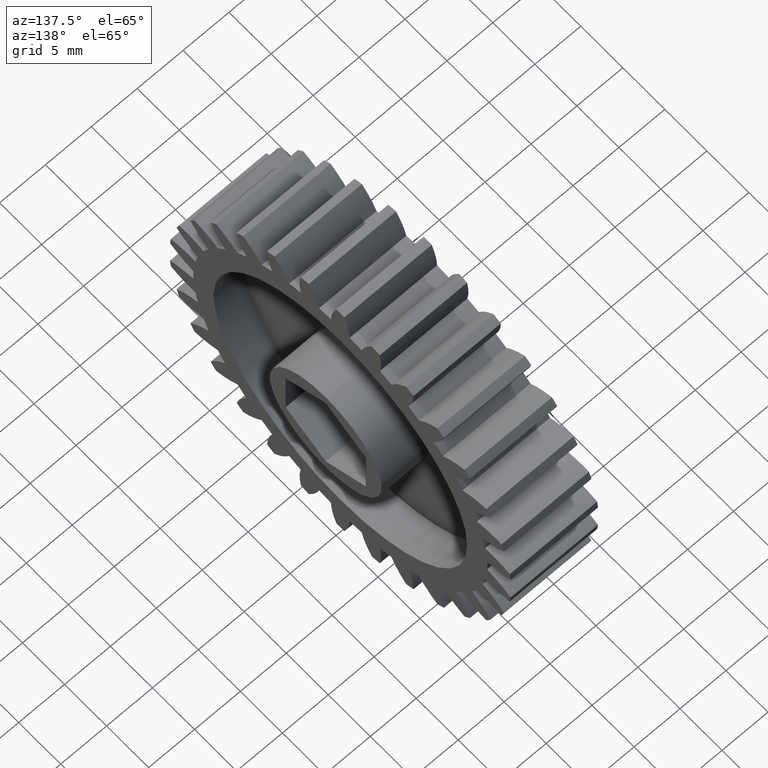
[diagram: clean part render]
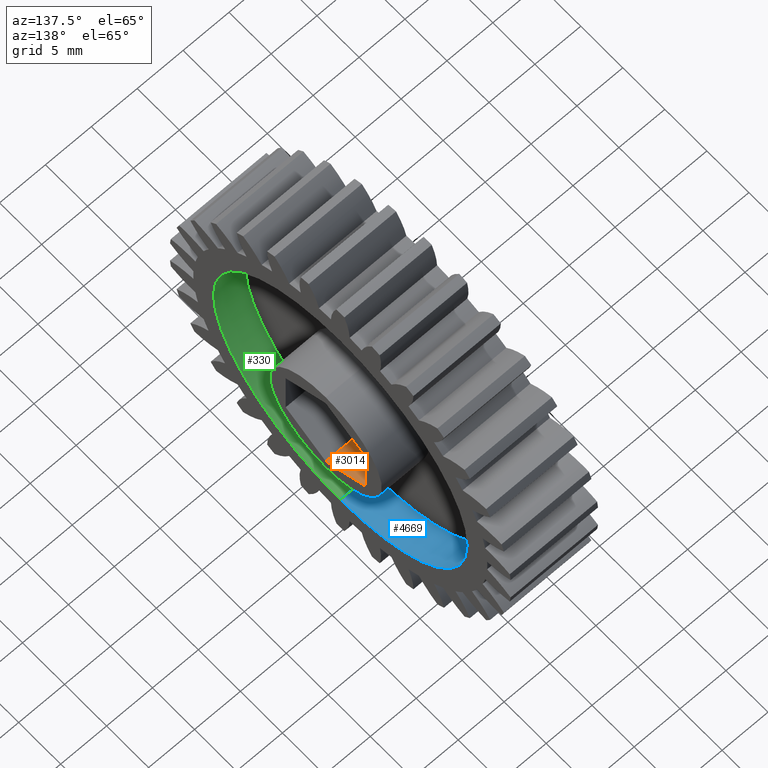
[diagram: same view with three faces highlighted in distinct colors, each labeled with its STEP entity id]
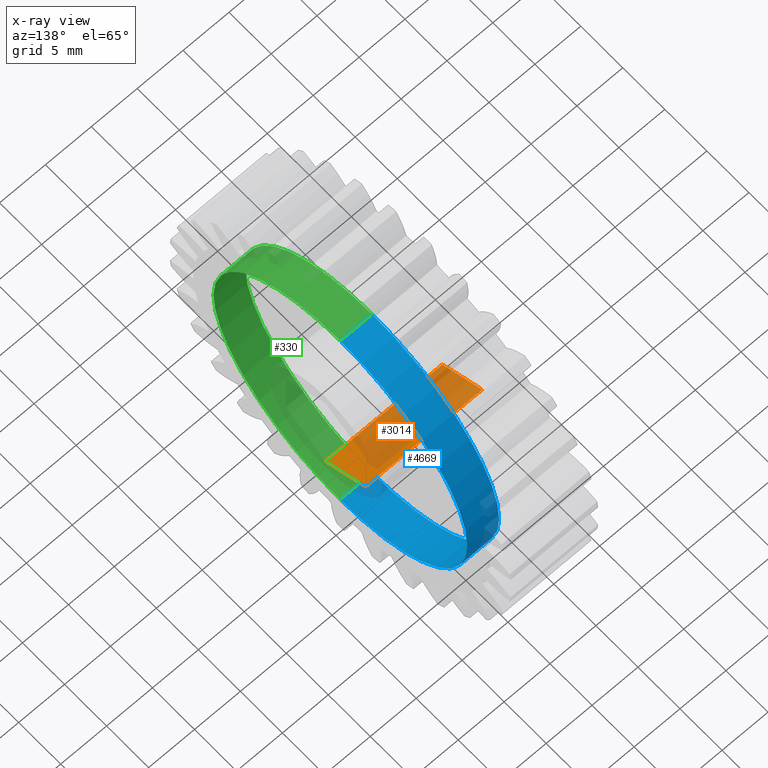
[diagram: x-ray of the same camera — body ghosted, the three highlighted faces saturated]
A machine part, auxiliary view with three faces highlighted in distinct colors.
The next image is the same camera in x-ray (body ghosted, the three faces saturated) — at least one of them is partly hidden behind the body in this view.
Their STEP definitions:

[orange] entity #3014 — the highlighted planar face has unit normal (0, 0.5, -0.866).
#29 = VECTOR ( 'NONE', #3936, 39.37007874015749600 ) ;
#79 = EDGE_LOOP ( 'NONE', ( #2999, #3098, #3125, #3221 ) ) ;
#97 = LINE ( 'NONE', #179, #29 ) ;
#128 = EDGE_CURVE ( 'NONE', #2533, #1705, #1711, .T. ) ;
#151 = FACE_OUTER_BOUND ( 'NONE', #79, .T. ) ;
#166 = CARTESIAN_POINT ( 'NONE',  ( -0.06250000000000001400, 3.632610216871045100E-017, -0.2165063509461097000 ) ) ;
#179 = CARTESIAN_POINT ( 'NONE',  ( 0.4375000000000000600, 3.632610216871045100E-017, -0.2165063509461097000 ) ) ;
#373 = EDGE_CURVE ( 'NONE', #917, #4404, #1312, .T. ) ;
#917 = VERTEX_POINT ( 'NONE', #3881 ) ;
#1144 = VECTOR ( 'NONE', #2646, 39.37007874015748100 ) ;
#1312 = LINE ( 'NONE', #2597, #1144 ) ;
#1583 = VECTOR ( 'NONE', #1822, 39.37007874015748100 ) ;
#1705 = VERTEX_POINT ( 'NONE', #2098 ) ;
#1711 = LINE ( 'NONE', #2261, #1583 ) ;
#1716 = CARTESIAN_POINT ( 'NONE',  ( -0.06250000000000001400, 3.632610216871045100E-017, -0.2165063509461097000 ) ) ;
#1799 = EDGE_CURVE ( 'NONE', #1705, #4404, #97, .T. ) ;
#1822 = DIRECTION ( 'NONE',  ( 1.000000000000000000, -0.0000000000000000000, -0.0000000000000000000 ) ) ;
#1914 = EDGE_CURVE ( 'NONE', #2533, #917, #4595, .T. ) ;
#2098 = CARTESIAN_POINT ( 'NONE',  ( 0.4375000000000000600, 3.414809992080329000E-017, -0.2165063509461097000 ) ) ;
#2261 = CARTESIAN_POINT ( 'NONE',  ( -0.06250000000000001400, 3.632610216871045100E-017, -0.2165063509461097000 ) ) ;
#2441 = PLANE ( 'NONE',  #3295 ) ;
#2533 = VERTEX_POINT ( 'NONE', #166 ) ;
#2597 = CARTESIAN_POINT ( 'NONE',  ( -0.06250000000000001400, 0.1875000000000000300, -0.1082531754730548200 ) ) ;
#2646 = DIRECTION ( 'NONE',  ( 1.000000000000000000, -0.0000000000000000000, -0.0000000000000000000 ) ) ;
#2999 = ORIENTED_EDGE ( 'NONE', *, *, #1799, .T. ) ;
#3014 = ADVANCED_FACE ( 'NONE', ( #151 ), #2441, .F. ) ;
#3098 = ORIENTED_EDGE ( 'NONE', *, *, #373, .F. ) ;
#3125 = ORIENTED_EDGE ( 'NONE', *, *, #1914, .F. ) ;
#3221 = ORIENTED_EDGE ( 'NONE', *, *, #128, .T. ) ;
#3295 = AXIS2_PLACEMENT_3D ( 'NONE', #1716, #3694, #3659 ) ;
#3659 = DIRECTION ( 'NONE',  ( 0.0000000000000000000, 0.8660254037844384900, 0.5000000000000002200 ) ) ;
#3694 = DIRECTION ( 'NONE',  ( 0.0000000000000000000, 0.5000000000000003300, -0.8660254037844386000 ) ) ;
#3881 = CARTESIAN_POINT ( 'NONE',  ( -0.06250000000000000000, 0.1874999999999999700, -0.1082531754730548200 ) ) ;
#3936 = DIRECTION ( 'NONE',  ( 0.0000000000000000000, 0.8660254037844384900, 0.5000000000000002200 ) ) ;
#4154 = DIRECTION ( 'NONE',  ( 0.0000000000000000000, 0.8660254037844384900, 0.5000000000000002200 ) ) ;
#4169 = CARTESIAN_POINT ( 'NONE',  ( 0.4375000000000000600, 0.1875000000000000300, -0.1082531754730548200 ) ) ;
#4179 = CARTESIAN_POINT ( 'NONE',  ( -0.06250000000000001400, 3.632610216871045100E-017, -0.2165063509461097000 ) ) ;
#4404 = VERTEX_POINT ( 'NONE', #4169 ) ;
#4419 = VECTOR ( 'NONE', #4154, 39.37007874015749600 ) ;
#4595 = LINE ( 'NONE', #4179, #4419 ) ;

[blue] entity #4669 — the highlighted cylindrical surface (partial cylindrical patch) has radius 15.0812 mm, axis along (1, -0, -0).
#421 = CARTESIAN_POINT ( 'NONE',  ( 0.3750000000000000600, 0.0000000000000000000, -0.5937500000000000000 ) ) ;
#435 = EDGE_CURVE ( 'NONE', #4170, #2448, #1023, .T. ) ;
#471 = FACE_OUTER_BOUND ( 'NONE', #3491, .T. ) ;
#503 = AXIS2_PLACEMENT_3D ( 'NONE', #4698, #4717, #4651 ) ;
#591 = CARTESIAN_POINT ( 'NONE',  ( 0.2374999999999999900, 7.271340369937410500E-017, 0.5937500000000000000 ) ) ;
#966 = VERTEX_POINT ( 'NONE', #3402 ) ;
#1016 = EDGE_CURVE ( 'NONE', #2473, #966, #4242, .T. ) ;
#1023 = CIRCLE ( 'NONE', #503, 0.5937500000000000000 ) ;
#1166 = CYLINDRICAL_SURFACE ( 'NONE', #1548, 0.5937500000000000000 ) ;
#1548 = AXIS2_PLACEMENT_3D ( 'NONE', #3811, #3817, #4392 ) ;
#1839 = EDGE_CURVE ( 'NONE', #2448, #966, #4873, .T. ) ;
#1890 = EDGE_CURVE ( 'NONE', #4170, #2473, #4549, .T. ) ;
#2448 = VERTEX_POINT ( 'NONE', #591 ) ;
#2473 = VERTEX_POINT ( 'NONE', #421 ) ;
#3045 = DIRECTION ( 'NONE',  ( 0.0000000000000000000, 0.0000000000000000000, -1.000000000000000000 ) ) ;
#3048 = DIRECTION ( 'NONE',  ( 1.000000000000000000, 0.0000000000000000000, 0.0000000000000000000 ) ) ;
#3060 = CARTESIAN_POINT ( 'NONE',  ( 0.3750000000000000600, 0.0000000000000000000, 0.0000000000000000000 ) ) ;
#3225 = ORIENTED_EDGE ( 'NONE', *, *, #1839, .F. ) ;
#3286 = ORIENTED_EDGE ( 'NONE', *, *, #435, .F. ) ;
#3347 = ORIENTED_EDGE ( 'NONE', *, *, #1890, .T. ) ;
#3402 = CARTESIAN_POINT ( 'NONE',  ( 0.3750000000000000600, 7.271340369937410500E-017, 0.5937500000000000000 ) ) ;
#3423 = ORIENTED_EDGE ( 'NONE', *, *, #1016, .T. ) ;
#3491 = EDGE_LOOP ( 'NONE', ( #3225, #3286, #3347, #3423 ) ) ;
#3811 = CARTESIAN_POINT ( 'NONE',  ( 0.2374999999999999900, 0.0000000000000000000, 0.0000000000000000000 ) ) ;
#3817 = DIRECTION ( 'NONE',  ( 1.000000000000000000, -0.0000000000000000000, -0.0000000000000000000 ) ) ;
#4170 = VERTEX_POINT ( 'NONE', #4665 ) ;
#4242 = CIRCLE ( 'NONE', #4870, 0.5937500000000000000 ) ;
#4325 = DIRECTION ( 'NONE',  ( 1.000000000000000000, -0.0000000000000000000, -0.0000000000000000000 ) ) ;
#4389 = CARTESIAN_POINT ( 'NONE',  ( 0.2374999999999999900, 0.0000000000000000000, -0.5937500000000000000 ) ) ;
#4392 = DIRECTION ( 'NONE',  ( 0.0000000000000000000, 0.0000000000000000000, -1.000000000000000000 ) ) ;
#4493 = VECTOR ( 'NONE', #4325, 39.37007874015748100 ) ;
#4549 = LINE ( 'NONE', #4389, #4493 ) ;
#4651 = DIRECTION ( 'NONE',  ( 0.0000000000000000000, 0.0000000000000000000, -1.000000000000000000 ) ) ;
#4665 = CARTESIAN_POINT ( 'NONE',  ( 0.2374999999999999900, 0.0000000000000000000, -0.5937500000000000000 ) ) ;
#4669 = ADVANCED_FACE ( 'NONE', ( #471 ), #1166, .F. ) ;
#4698 = CARTESIAN_POINT ( 'NONE',  ( 0.2374999999999999900, 0.0000000000000000000, 0.0000000000000000000 ) ) ;
#4717 = DIRECTION ( 'NONE',  ( 1.000000000000000000, 0.0000000000000000000, 0.0000000000000000000 ) ) ;
#4725 = DIRECTION ( 'NONE',  ( 1.000000000000000000, -0.0000000000000000000, -0.0000000000000000000 ) ) ;
#4729 = CARTESIAN_POINT ( 'NONE',  ( 0.2374999999999999900, 7.271340369937410500E-017, 0.5937500000000000000 ) ) ;
#4867 = VECTOR ( 'NONE', #4725, 39.37007874015748100 ) ;
#4870 = AXIS2_PLACEMENT_3D ( 'NONE', #3060, #3048, #3045 ) ;
#4873 = LINE ( 'NONE', #4729, #4867 ) ;

[green] entity #330 — the highlighted cylindrical surface (partial cylindrical patch) has radius 15.0812 mm, axis along (1, -0, -0).
#3 = DIRECTION ( 'NONE',  ( 0.0000000000000000000, 0.0000000000000000000, -1.000000000000000000 ) ) ;
#40 = DIRECTION ( 'NONE',  ( 1.000000000000000000, 0.0000000000000000000, 0.0000000000000000000 ) ) ;
#330 = ADVANCED_FACE ( 'NONE', ( #1450 ), #1194, .F. ) ;
#410 = AXIS2_PLACEMENT_3D ( 'NONE', #2900, #2956, #2948 ) ;
#421 = CARTESIAN_POINT ( 'NONE',  ( 0.3750000000000000600, 0.0000000000000000000, -0.5937500000000000000 ) ) ;
#591 = CARTESIAN_POINT ( 'NONE',  ( 0.2374999999999999900, 7.271340369937410500E-017, 0.5937500000000000000 ) ) ;
#966 = VERTEX_POINT ( 'NONE', #3402 ) ;
#1194 = CYLINDRICAL_SURFACE ( 'NONE', #410, 0.5937500000000000000 ) ;
#1450 = FACE_OUTER_BOUND ( 'NONE', #1880, .T. ) ;
#1815 = EDGE_CURVE ( 'NONE', #2448, #4170, #2394, .T. ) ;
#1839 = EDGE_CURVE ( 'NONE', #2448, #966, #4873, .T. ) ;
#1842 = ORIENTED_EDGE ( 'NONE', *, *, #1890, .F. ) ;
#1859 = EDGE_CURVE ( 'NONE', #966, #2473, #4752, .T. ) ;
#1880 = EDGE_LOOP ( 'NONE', ( #2363, #2307, #4211, #1842 ) ) ;
#1890 = EDGE_CURVE ( 'NONE', #4170, #2473, #4549, .T. ) ;
#2307 = ORIENTED_EDGE ( 'NONE', *, *, #1839, .T. ) ;
#2363 = ORIENTED_EDGE ( 'NONE', *, *, #1815, .F. ) ;
#2394 = CIRCLE ( 'NONE', #4284, 0.5937500000000000000 ) ;
#2448 = VERTEX_POINT ( 'NONE', #591 ) ;
#2473 = VERTEX_POINT ( 'NONE', #421 ) ;
#2900 = CARTESIAN_POINT ( 'NONE',  ( 0.2374999999999999900, 0.0000000000000000000, 0.0000000000000000000 ) ) ;
#2948 = DIRECTION ( 'NONE',  ( 0.0000000000000000000, 0.0000000000000000000, -1.000000000000000000 ) ) ;
#2956 = DIRECTION ( 'NONE',  ( 1.000000000000000000, -0.0000000000000000000, -0.0000000000000000000 ) ) ;
#3268 = CARTESIAN_POINT ( 'NONE',  ( 0.2374999999999999900, 0.0000000000000000000, 0.0000000000000000000 ) ) ;
#3402 = CARTESIAN_POINT ( 'NONE',  ( 0.3750000000000000600, 7.271340369937410500E-017, 0.5937500000000000000 ) ) ;
#4170 = VERTEX_POINT ( 'NONE', #4665 ) ;
#4211 = ORIENTED_EDGE ( 'NONE', *, *, #1859, .T. ) ;
#4223 = AXIS2_PLACEMENT_3D ( 'NONE', #4551, #4529, #4513 ) ;
#4284 = AXIS2_PLACEMENT_3D ( 'NONE', #3268, #40, #3 ) ;
#4325 = DIRECTION ( 'NONE',  ( 1.000000000000000000, -0.0000000000000000000, -0.0000000000000000000 ) ) ;
#4389 = CARTESIAN_POINT ( 'NONE',  ( 0.2374999999999999900, 0.0000000000000000000, -0.5937500000000000000 ) ) ;
#4493 = VECTOR ( 'NONE', #4325, 39.37007874015748100 ) ;
#4513 = DIRECTION ( 'NONE',  ( 0.0000000000000000000, 0.0000000000000000000, -1.000000000000000000 ) ) ;
#4529 = DIRECTION ( 'NONE',  ( 1.000000000000000000, 0.0000000000000000000, 0.0000000000000000000 ) ) ;
#4549 = LINE ( 'NONE', #4389, #4493 ) ;
#4551 = CARTESIAN_POINT ( 'NONE',  ( 0.3750000000000000600, 0.0000000000000000000, 0.0000000000000000000 ) ) ;
#4665 = CARTESIAN_POINT ( 'NONE',  ( 0.2374999999999999900, 0.0000000000000000000, -0.5937500000000000000 ) ) ;
#4725 = DIRECTION ( 'NONE',  ( 1.000000000000000000, -0.0000000000000000000, -0.0000000000000000000 ) ) ;
#4729 = CARTESIAN_POINT ( 'NONE',  ( 0.2374999999999999900, 7.271340369937410500E-017, 0.5937500000000000000 ) ) ;
#4752 = CIRCLE ( 'NONE', #4223, 0.5937500000000000000 ) ;
#4867 = VECTOR ( 'NONE', #4725, 39.37007874015748100 ) ;
#4873 = LINE ( 'NONE', #4729, #4867 ) ;